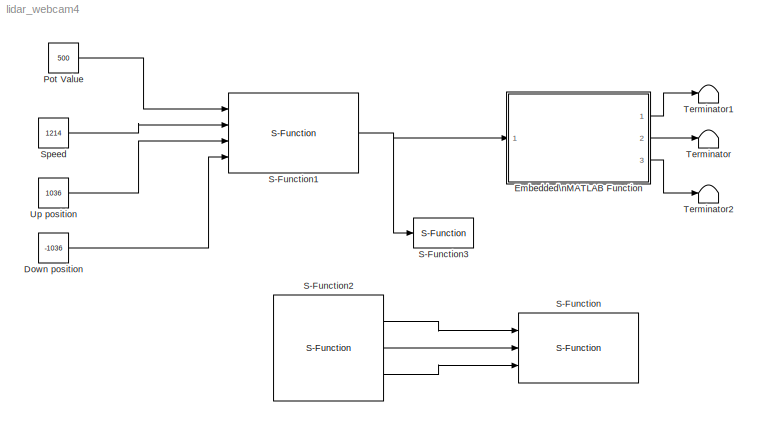
MODEL lidar_webcam4
KIND model
BLOCK [Constant] Down position
  OutDataType = fixdt(1, 16)
  OutScaling = 2^0
  Value = -1036
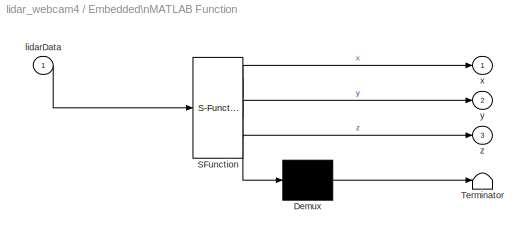
BLOCK [SubSystem] Embedded\nMATLAB Function
  FunctionWithSeparateData = off
  MaskDescription = Embedded MATLAB block
  MaskDisplay = disp('xyz_calc');
  MaskHideContents = off
  MaskIconFrame = on
  MaskIconOpaque = off
  MaskIconRotate = none
  MaskIconUnits = autoscale
  MaskPortRotate = default
  MaskSelfModifiable = on
  MaskType = Stateflow
  MinAlgLoopOccurrences = off
  Opaque = off
  PermitHierarchicalResolution = ExplicitOnly
  Ports = [1, 3]
  PropExecContextOutsideSubsystem = off
  RTWSystemCode = Auto
  RequestExecContextInheritance = off
BLOCK [Demux] Embedded\nMATLAB Function/ Demux 
  Outputs = 1
  Ports = [1, 1]
BLOCK [S-Function] Embedded\nMATLAB Function/ SFunction 
  EnableBusSupport = on
  FunctionName = sf_sfun
  PortCounts = [1 4]
  Ports = [1, 4]
  Tag = Stateflow S-Function lidar_webcam4 2
BLOCK [Terminator] Embedded\nMATLAB Function/ Terminator 
BLOCK [Inport] Embedded\nMATLAB Function/lidarData
  IconDisplay = Port number
  OutDataType = sfix(16)
  OutScaling = 2^0
BLOCK [Outport] Embedded\nMATLAB Function/x
  IconDisplay = Port number
BLOCK [Outport] Embedded\nMATLAB Function/y
  IconDisplay = Port number
  OutDataType = sfix(16)
  OutScaling = 2^0
  Port = 2
BLOCK [Outport] Embedded\nMATLAB Function/z
  IconDisplay = Port number
  Port = 3
BLOCK [Constant] Pot Value
  OutDataType = fixdt(1, 16)
  OutDataTypeMode = int32
  OutDataTypeStr = int32
  OutScaling = 2^0
  Value = 500
BLOCK [S-Function] S-Function
  EnableBusSupport = off
  FunctionName = videoExport_v2
  Ports = [3]
BLOCK [S-Function] S-Function1
  EnableBusSupport = off
  FunctionName = lidar_zero_test_v2
  Ports = [4, 1]
BLOCK [S-Function] S-Function2
  EnableBusSupport = off
  FunctionName = WebcamTest
  Ports = [0, 3]
BLOCK [S-Function] S-Function3
  EnableBusSupport = off
  FunctionName = lidarExport
  Ports = [1]
BLOCK [Constant] Speed
  OutDataType = fixdt(1, 16)
  OutScaling = 2^0
  Value = 1214
BLOCK [Terminator] Terminator
BLOCK [Terminator] Terminator1
BLOCK [Terminator] Terminator2
BLOCK [Constant] Up position
  OutDataType = fixdt(1, 16)
  OutScaling = 2^0
  Value = 1036
LINE Down position:1 -> S-Function1:4
LINE Embedded\nMATLAB Function/ Demux :1 -> Embedded\nMATLAB Function/ Terminator :1
LINE Embedded\nMATLAB Function/ SFunction :1 -> Embedded\nMATLAB Function/ Demux :1
LINE Embedded\nMATLAB Function/ SFunction :2 -> Embedded\nMATLAB Function/x:1
LINE Embedded\nMATLAB Function/ SFunction :3 -> Embedded\nMATLAB Function/y:1
LINE Embedded\nMATLAB Function/ SFunction :4 -> Embedded\nMATLAB Function/z:1
LINE Embedded\nMATLAB Function/lidarData:1 -> Embedded\nMATLAB Function/ SFunction :1
LINE Embedded\nMATLAB Function:1 -> Terminator1:1
LINE Embedded\nMATLAB Function:2 -> Terminator:1
LINE Embedded\nMATLAB Function:3 -> Terminator2:1
LINE Pot Value:1 -> S-Function1:1
NET S-Function1:1 -> Embedded\nMATLAB Function:1, S-Function3:1
LINE S-Function2:1 -> S-Function:1
LINE S-Function2:2 -> S-Function:2
LINE S-Function2:3 -> S-Function:3
LINE Speed:1 -> S-Function1:2
LINE Up position:1 -> S-Function1:3
note: NET lines group one-source signal fan-out (src -> all destinations, sorted); 1:1 wires keep LINE
CHART Embedded\nMATLAB Function states=1 transitions=1
  STATE_LABEL 'eML_blk_kernel()'
